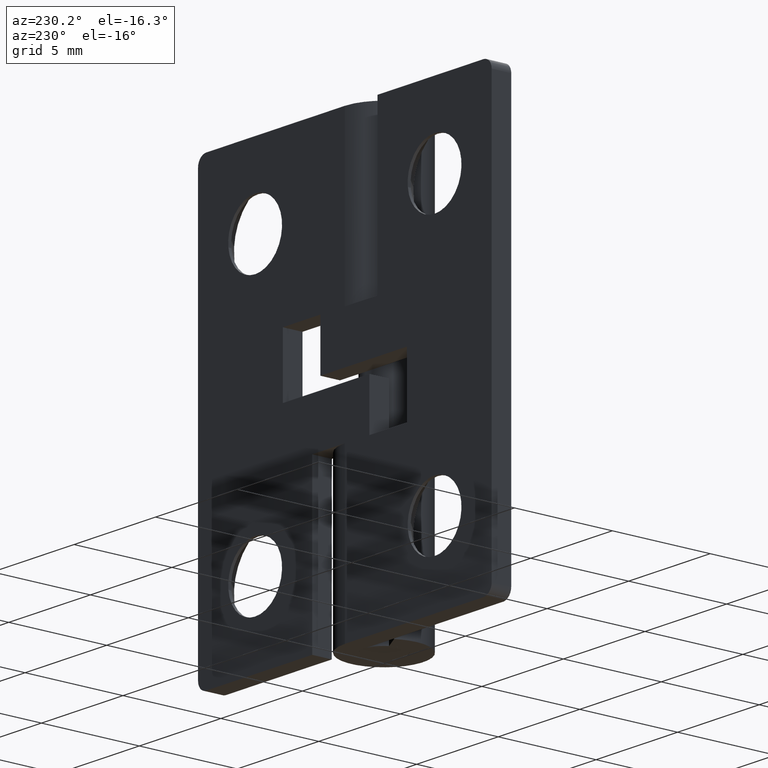
[diagram: clean part render]
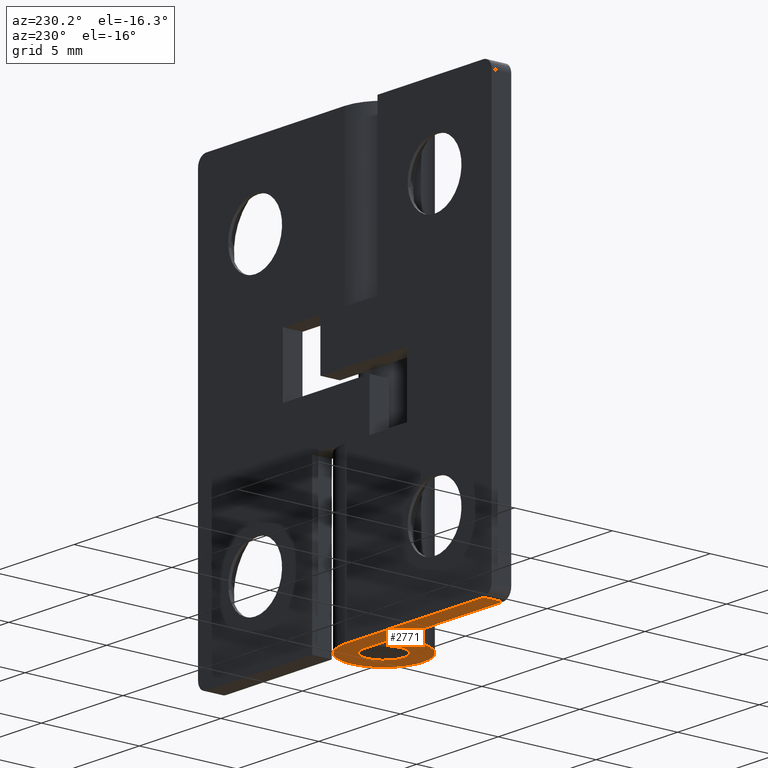
[diagram: same view with one face highlighted and labeled with its STEP entity id]
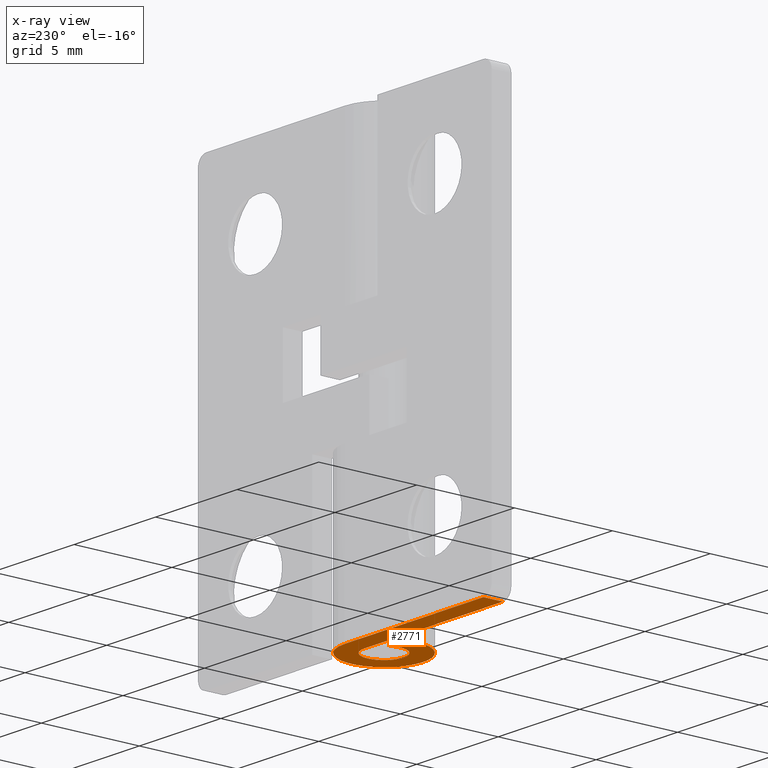
[diagram: x-ray of the same camera — body ghosted, the highlighted face saturated]
A machine part, auxiliary view. The second image highlights one B-rep face of the part: STEP entity #2771.
The next image is the same camera in x-ray: the body ghosted, the highlighted face saturated — about 0% of this face is hidden behind the body in this view.
In plain terms, the highlighted face is a freeform B-spline surface patch.
Its self-contained STEP definition (entity closure, byte-faithful):
#2531=CARTESIAN_POINT('',(-8.500000000000000,1.0,0.0));
#2532=VERTEX_POINT('',#2531);
#2553=CARTESIAN_POINT('',(-8.500000000000000,2.0,0.0));
#2554=VERTEX_POINT('',#2553);
#2568=CARTESIAN_POINT('',(-8.500000000000000,1.0,0.0));
#2569=CARTESIAN_POINT('',(-8.500000000000000,2.0,0.0));
#2570=QUASI_UNIFORM_CURVE('',1,(#2568,#2569),.UNSPECIFIED.,.F.,.U.);
#2571=EDGE_CURVE('',#2532,#2554,#2570,.T.);
#2702=CARTESIAN_POINT('',(-9.024471289484998,-2.199490096227204,0.0));
#2703=CARTESIAN_POINT('',(2.524397693955632,-2.199490096227204,0.0));
#2704=CARTESIAN_POINT('',(-9.024471289484998,2.199785356629787,0.0));
#2705=CARTESIAN_POINT('',(2.524397693955632,2.199785356629787,0.0));
#2706=B_SPLINE_SURFACE_WITH_KNOTS('',1,1,((#2702,#2704),(#2703,#2705)),.UNSPECIFIED.,.F.,.F.,.U.,(2,2),(2,2),(0.0,11.548868983440631),(0.0,4.399275452856990),.UNSPECIFIED.);
#2707=CARTESIAN_POINT('',(6.123032E-017,1.0,0.0));
#2708=VERTEX_POINT('',#2707);
#2709=CARTESIAN_POINT('',(6.123032E-017,1.0,0.0));
#2710=CARTESIAN_POINT('',(-8.500000000000000,1.0,0.0));
#2711=QUASI_UNIFORM_CURVE('',1,(#2709,#2710),.UNSPECIFIED.,.F.,.U.);
#2712=EDGE_CURVE('',#2708,#2532,#2711,.T.);
#2713=ORIENTED_EDGE('',*,*,#2712,.T.);
#2714=ORIENTED_EDGE('',*,*,#2571,.T.);
#2715=CARTESIAN_POINT('',(0.0,2.0,0.0));
#2716=VERTEX_POINT('',#2715);
#2717=CARTESIAN_POINT('',(-8.500000000000000,2.0,0.0));
#2718=CARTESIAN_POINT('',(0.0,2.0,0.0));
#2719=QUASI_UNIFORM_CURVE('',1,(#2717,#2718),.UNSPECIFIED.,.F.,.U.);
#2720=EDGE_CURVE('',#2554,#2716,#2719,.T.);
#2721=ORIENTED_EDGE('',*,*,#2720,.T.);
#2722=CARTESIAN_POINT('',(-1.759971590679805,0.950000000000000,0.0));
#2723=VERTEX_POINT('',#2722);
#2724=CARTESIAN_POINT('',(0.0,2.0,0.0));
#2725=CARTESIAN_POINT('',(1.523311426391113,2.000000000000000,0.0));
#2726=CARTESIAN_POINT('',(1.928096575312494,0.531454227820452,0.0));
#2727=CARTESIAN_POINT('',(2.332881724233873,-0.937091544359094,0.0));
#2728=CARTESIAN_POINT('',(1.024695076595961,-1.717556403731766,0.0));
#2729=CARTESIAN_POINT('',(-0.283491571041951,-2.498021263104438,0.0));
#2730=CARTESIAN_POINT('',(-1.383518044628767,-1.444256840103794,0.0));
#2731=CARTESIAN_POINT('',(-2.483544518215582,-0.390492417103149,0.0));
#2732=CARTESIAN_POINT('',(-1.759971590679806,0.949999999999997,0.0));
#2740=(BOUNDED_CURVE()B_SPLINE_CURVE(2,(#2724,#2725,#2726,#2727,#2728,#2729,#2730,#2731,#2732),.UNSPECIFIED.,.F.,.U.)B_SPLINE_CURVE_WITH_KNOTS((3,2,2,2,3),(0.0,0.250000000000000,0.500000000000000,0.750000000000000,1.0),.UNSPECIFIED.)CURVE()GEOMETRIC_REPRESENTATION_ITEM()RATIONAL_B_SPLINE_CURVE((1.0,0.795527219493534,1.0,0.795527219493534,1.0,0.795527219493534,1.0,0.795527219493534,1.0))REPRESENTATION_ITEM(''));
#2741=EDGE_CURVE('',#2716,#2723,#2740,.T.);
#2742=ORIENTED_EDGE('',*,*,#2741,.T.);
#2743=CARTESIAN_POINT('',(-0.879985795339902,0.475000000000000,0.0));
#2744=VERTEX_POINT('',#2743);
#2745=CARTESIAN_POINT('',(-1.759971590679805,0.950000000000000,0.0));
#2746=CARTESIAN_POINT('',(-0.879985795339902,0.475000000000000,0.0));
#2747=QUASI_UNIFORM_CURVE('',1,(#2745,#2746),.UNSPECIFIED.,.F.,.U.);
#2748=EDGE_CURVE('',#2723,#2744,#2747,.T.);
#2749=ORIENTED_EDGE('',*,*,#2748,.T.);
#2750=CARTESIAN_POINT('',(0.0,1.0,0.0));
#2751=CARTESIAN_POINT('',(0.761655713195556,1.0,0.0));
#2752=CARTESIAN_POINT('',(0.964048287656247,0.265727113910226,0.0));
#2753=CARTESIAN_POINT('',(1.166440862116937,-0.468545772179547,0.0));
#2754=CARTESIAN_POINT('',(0.512347538297981,-0.858778201865883,0.0));
#2755=CARTESIAN_POINT('',(-0.141745785520976,-1.249010631552219,0.0));
#2756=CARTESIAN_POINT('',(-0.691759022314383,-0.722128420051897,0.0));
#2757=CARTESIAN_POINT('',(-1.241772259107791,-0.195246208551574,0.0));
#2758=CARTESIAN_POINT('',(-0.879985795339903,0.474999999999999,0.0));
#2766=(BOUNDED_CURVE()B_SPLINE_CURVE(2,(#2750,#2751,#2752,#2753,#2754,#2755,#2756,#2757,#2758),.UNSPECIFIED.,.F.,.U.)B_SPLINE_CURVE_WITH_KNOTS((3,2,2,2,3),(0.0,0.250000000000000,0.500000000000000,0.750000000000000,1.0),.UNSPECIFIED.)CURVE()GEOMETRIC_REPRESENTATION_ITEM()RATIONAL_B_SPLINE_CURVE((1.0,0.795527219493534,1.0,0.795527219493534,1.0,0.795527219493534,1.0,0.795527219493534,1.0))REPRESENTATION_ITEM(''));
#2767=EDGE_CURVE('',#2708,#2744,#2766,.T.);
#2768=ORIENTED_EDGE('',*,*,#2767,.F.);
#2769=EDGE_LOOP('',(#2713,#2714,#2721,#2742,#2749,#2768));
#2770=FACE_OUTER_BOUND('',#2769,.T.);
#2771=ADVANCED_FACE('',(#2770),#2706,.F.);